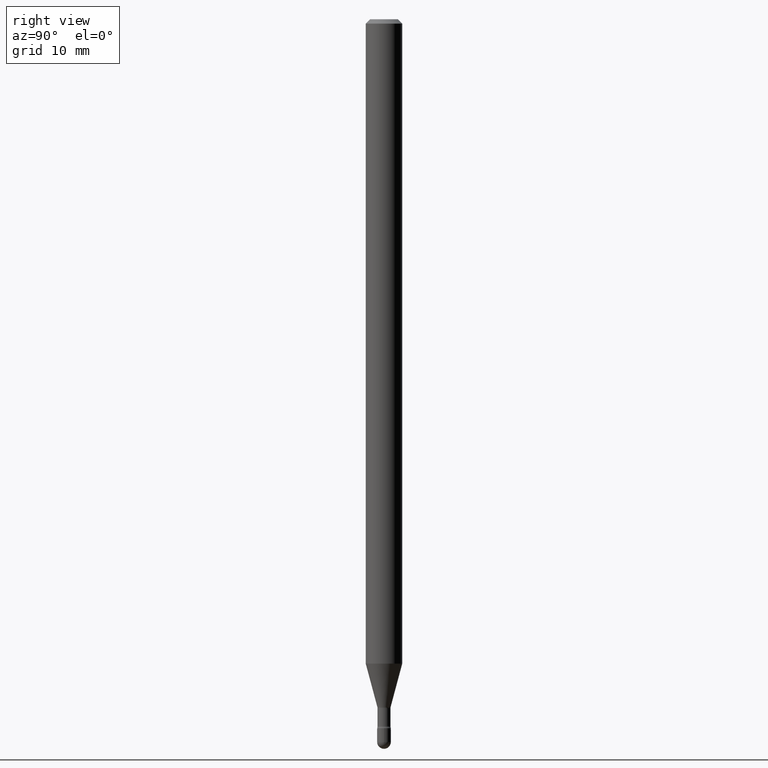
[diagram: clean part render]
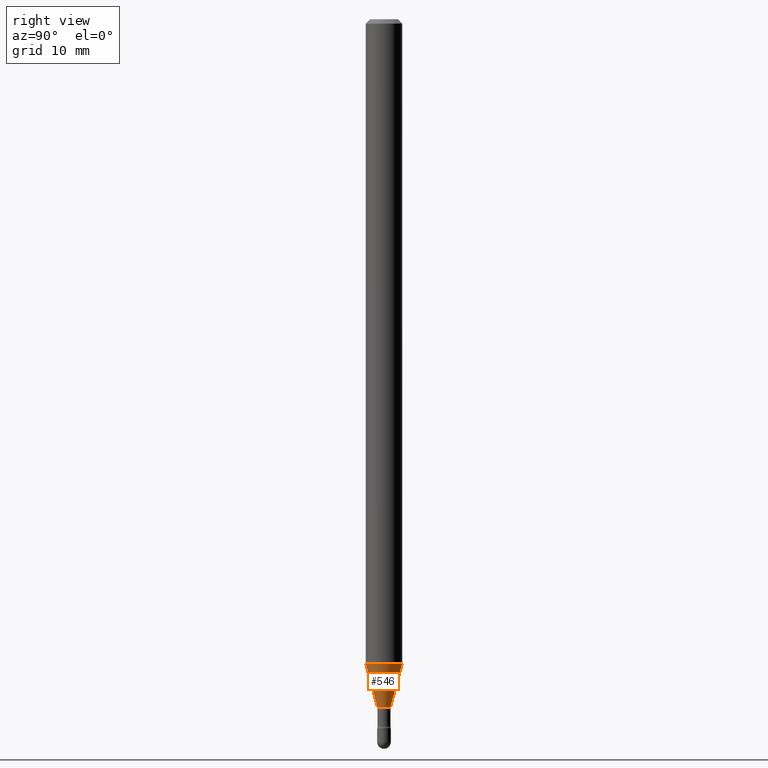
[diagram: same view with one face highlighted and labeled with its STEP entity id]
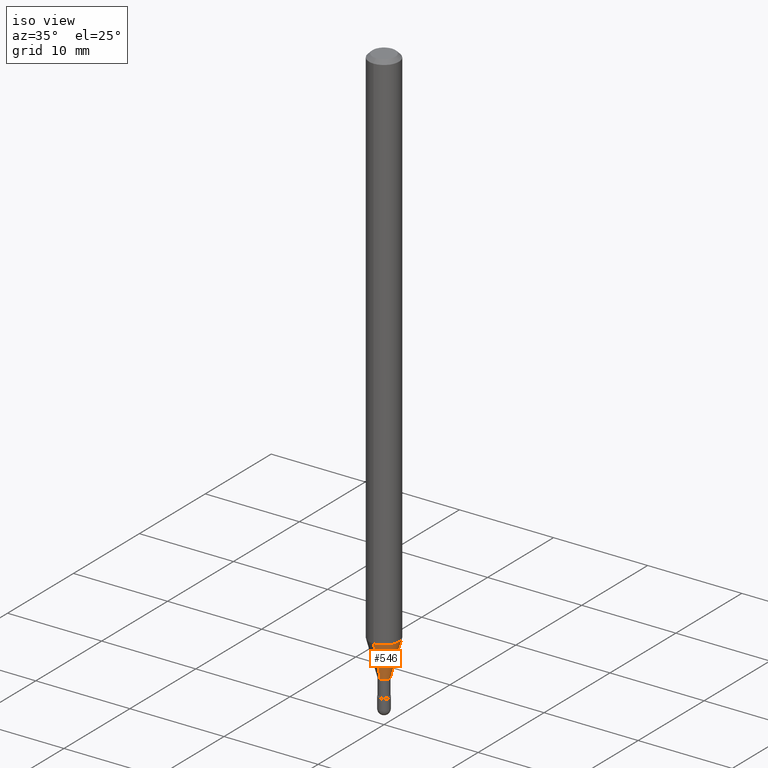
[diagram: same view with one face highlighted and labeled with its STEP entity id]
A machine part, right view. The second image highlights one B-rep face of the part: STEP entity #546.
A second angle (iso view) of the same face is appended — the face is thin or edge-on in the first view.
In plain terms, the highlighted conical surface has half-angle 15 deg.
Its self-contained STEP definition (entity closure, byte-faithful):
#14 = DIRECTION ( 'NONE',  ( -6.982962677686265922E-15, -1.000000000000000000, 0.000000000000000000 ) ) ;
#18 = VECTOR ( 'NONE', #365, 39.37007874015748143 ) ;
#29 = VERTEX_POINT ( 'NONE', #152 ) ;
#57 = LINE ( 'NONE', #96, #18 ) ;
#61 = DIRECTION ( 'NONE',  ( -2.445458922763215307E-29, 3.491495492465866441E-15, 1.000000000000000000 ) ) ;
#91 = EDGE_CURVE ( 'NONE', #413, #165, #156, .T. ) ;
#96 = CARTESIAN_POINT ( 'NONE',  ( 1.606616180941393285E-16, 0.02261111260565575043, -2.357092501787273253 ) ) ;
#99 = CARTESIAN_POINT ( 'NONE',  ( 5.764172890273956731E-29, -8.229777845315356399E-15, -2.357092501787273253 ) ) ;
#108 = EDGE_LOOP ( 'NONE', ( #316, #171, #212, #333 ) ) ;
#120 = DIRECTION ( 'NONE',  ( -6.982962677686265922E-15, -1.000000000000000000, 4.370956789862821150E-15 ) ) ;
#136 = CARTESIAN_POINT ( 'NONE',  ( 5.764172890273956731E-29, -8.229777845315356399E-15, -2.357092501787273253 ) ) ;
#147 = AXIS2_PLACEMENT_3D ( 'NONE', #99, #403, #14 ) ;
#152 = CARTESIAN_POINT ( 'NONE',  ( -1.578925554262553659E-16, -0.02261111260567220949, -2.357092501787273253 ) ) ;
#156 = CIRCLE ( 'NONE', #179, 0.06250000000000000000 ) ;
#165 = VERTEX_POINT ( 'NONE', #265 ) ;
#171 = ORIENTED_EDGE ( 'NONE', *, *, #175, .T. ) ;
#175 = EDGE_CURVE ( 'NONE', #460, #165, #57, .T. ) ;
#179 = AXIS2_PLACEMENT_3D ( 'NONE', #310, #211, #120 ) ;
#181 = CARTESIAN_POINT ( 'NONE',  ( -4.364351673553376817E-16, -0.06250000000000772993, -2.208225147374217379 ) ) ;
#211 = DIRECTION ( 'NONE',  ( -2.445458922763215307E-29, 3.491495492465866441E-15, 1.000000000000000000 ) ) ;
#212 = ORIENTED_EDGE ( 'NONE', *, *, #91, .F. ) ;
#225 = DIRECTION ( 'NONE',  ( -6.982962677686265922E-15, -1.000000000000000000, 0.000000000000000000 ) ) ;
#265 = CARTESIAN_POINT ( 'NONE',  ( 4.440892098501163573E-16, 0.06249999999999226313, -2.208225147374217823 ) ) ;
#275 = EDGE_CURVE ( 'NONE', #29, #460, #499, .T. ) ;
#296 = VECTOR ( 'NONE', #439, 39.37007874015748854 ) ;
#298 = AXIS2_PLACEMENT_3D ( 'NONE', #136, #61, #225 ) ;
#310 = CARTESIAN_POINT ( 'NONE',  ( 5.400123890116396966E-29, -7.710008148406855528E-15, -2.208225147374217823 ) ) ;
#316 = ORIENTED_EDGE ( 'NONE', *, *, #275, .T. ) ;
#332 = EDGE_CURVE ( 'NONE', #29, #413, #341, .T. ) ;
#333 = ORIENTED_EDGE ( 'NONE', *, *, #332, .F. ) ;
#341 = LINE ( 'NONE', #512, #296 ) ;
#365 = DIRECTION ( 'NONE',  ( 1.839019923739596371E-15, 0.2588190451025244032, 0.9659258262890673130 ) ) ;
#403 = DIRECTION ( 'NONE',  ( -2.445458922763215307E-29, 3.491495492465866441E-15, 1.000000000000000000 ) ) ;
#413 = VERTEX_POINT ( 'NONE', #181 ) ;
#436 = CONICAL_SURFACE ( 'NONE', #298, 0.02261111260566397996, 0.2617993877991496854 ) ;
#439 = DIRECTION ( 'NONE',  ( -1.807323732225326195E-15, -0.2588190451025176309, 0.9659258262890690894 ) ) ;
#460 = VERTEX_POINT ( 'NONE', #488 ) ;
#488 = CARTESIAN_POINT ( 'NONE',  ( 3.023754139721279785E-16, 0.02261111260565575043, -2.357092501787273253 ) ) ;
#490 = FACE_OUTER_BOUND ( 'NONE', #108, .T. ) ;
#499 = CIRCLE ( 'NONE', #147, 0.02261111260566397996 ) ;
#512 = CARTESIAN_POINT ( 'NONE',  ( -1.578925554262553659E-16, -0.02261111260567220949, -2.357092501787273253 ) ) ;
#546 = ADVANCED_FACE ( 'NONE', ( #490 ), #436, .T. ) ;